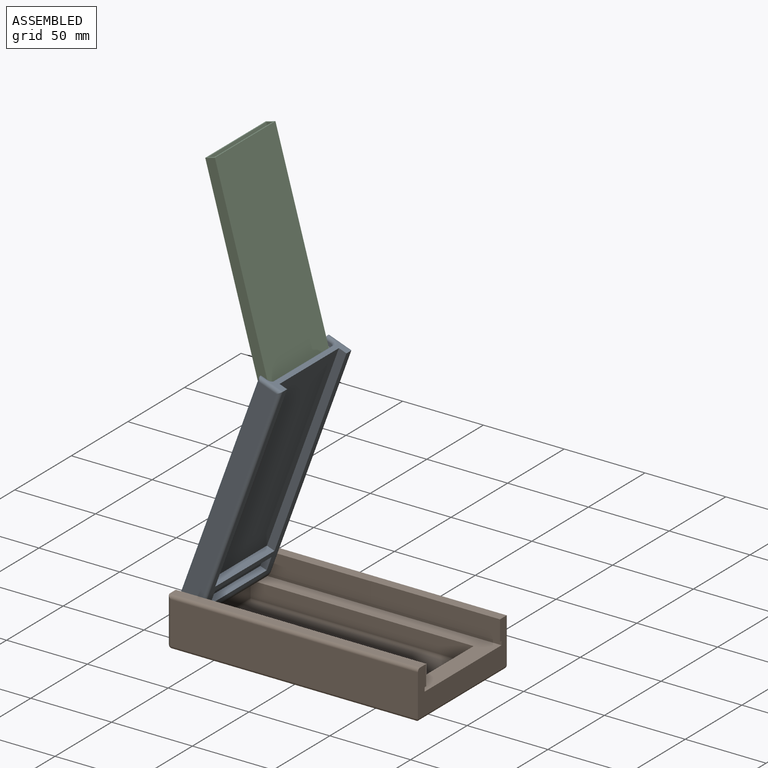
[diagram: assembled view]
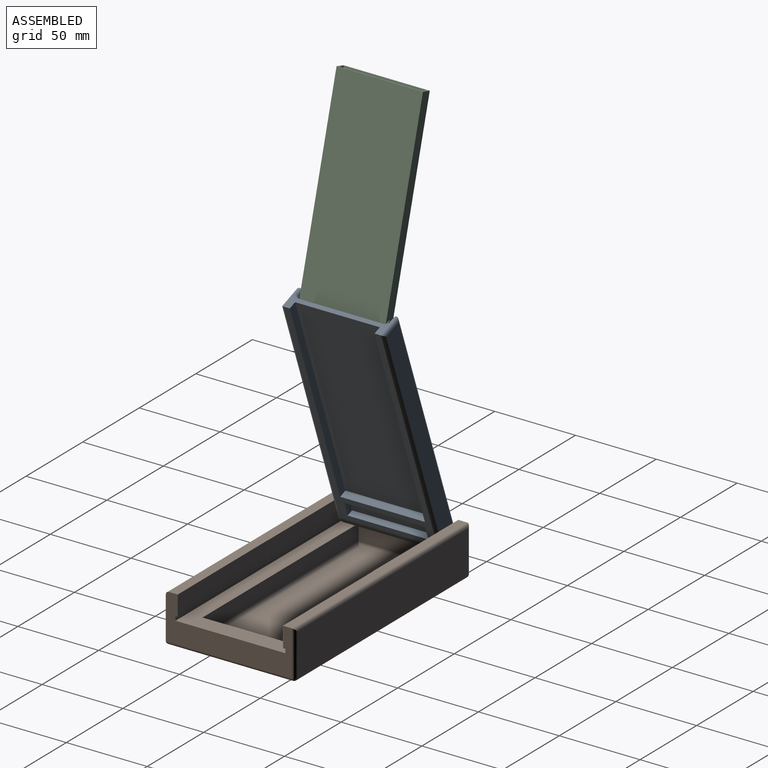
[diagram: assembled view, second angle]
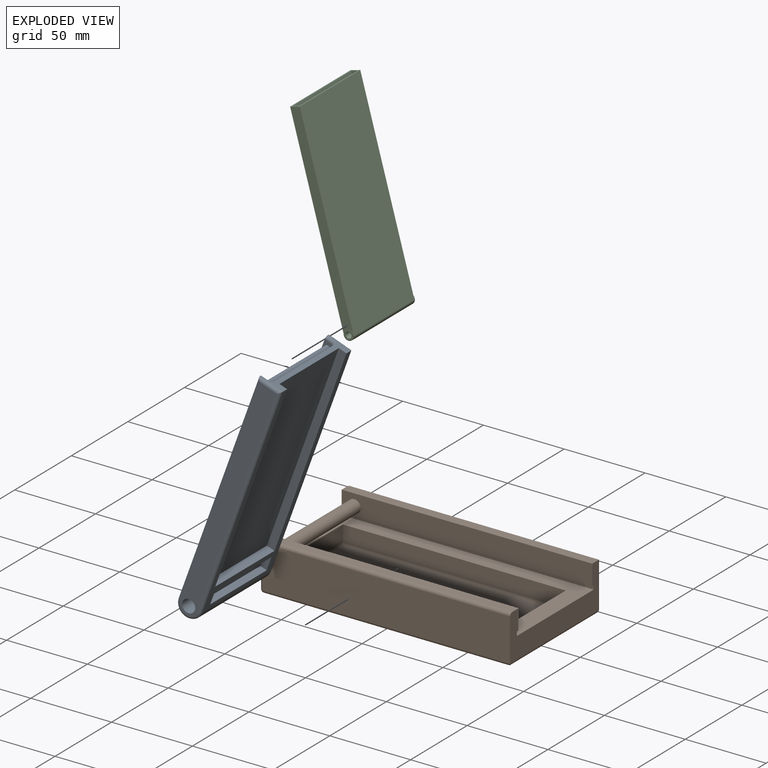
[diagram: exploded view]
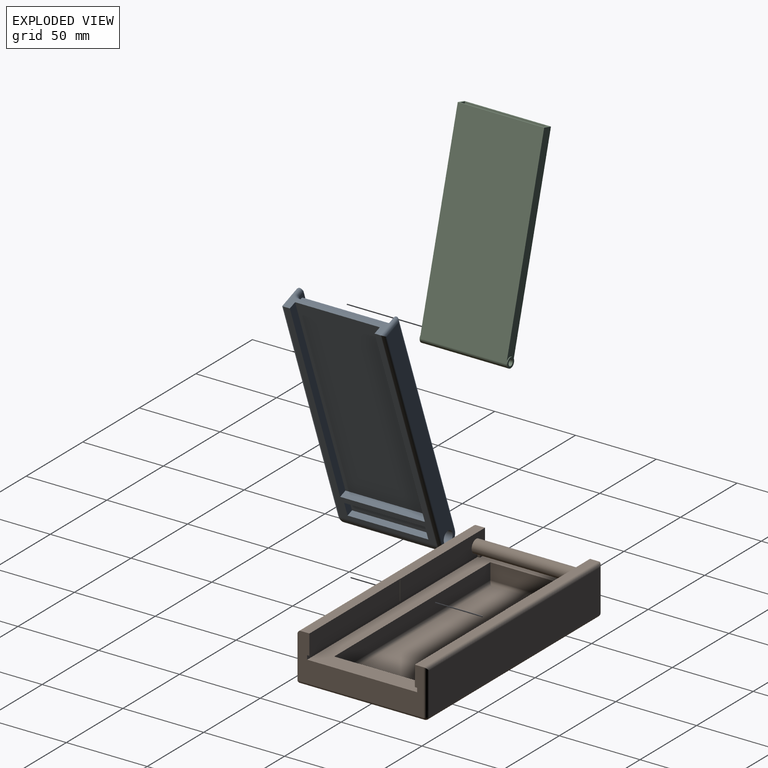
[diagram: exploded view, second angle]
ASSEMBLY  parts=3 mates=2
PART A: 39 faces, bbox 153.8x64x16.2 mm
  f0: plane 130.22x5mm, normal (0,-1,0), area 651.1mm2, adj f2,f4,f13,f33
  f1: plane 130.22x5mm, normal (0,1,0), area 651.1mm2, adj f2,f4,f13,f33
  f2: plane 130.22x52.44mm, normal (0,0,-1), area 6828.6mm2, adj f0,f1,f13,f33
  f3: plane 145.7x60mm, normal (0,0,1), area 1029.1mm2, adj f7,f9,f10,f11,f18,f26,f27,f32
  f4: plane 145.7x60mm, normal (0,0,-1), area 1476.2mm2, adj f0,f1,f7,f13,f28,f30,f33,f34
  f5: plane 149.2x11mm, normal (0,-1,0), area 1578mm2, adj f8,f18,f30,f31,f32
  f6: plane 149.2x11mm, normal (0,1,0), area 1578mm2, adj f8,f26,f27,f28,f29
  f7: cylinder r=7.5mm len=60mm, axis (0,1,0), area 1413.7mm2, adj f3,f4,f29,f31
  f8: cylinder r=4mm len=64mm, axis (0,1,0), area 1608.5mm2, adj f5,f6
  f9: plane 135.7x4mm, normal (0,1,0), area 525.5mm2, adj f3,f11,f14,f15,f18,f19,f20
  f10: plane 135.7x4mm, normal (0,-1,0), area 534.7mm2, adj f3,f11,f14,f24,f26
  f11: plane 56x4mm, normal (1,0,0), area 224mm2, adj f3,f9,f10,f22
  f12: plane 133.7x52.15mm, normal (0,0,1), area 6952.8mm2, adj f17,f19,f20,f22,f23,f24
  f13: plane 60x11mm, normal (1,0,0), area 164.7mm2, adj f0,f1,f2,f4,f18,f21,f23,f25
  f14: cylinder r=1.75mm len=56mm, axis (0,1,0), area 615.8mm2, adj f9,f10,f19,f24
  f15: cylinder r=1.85mm len=3.7mm, axis (0,1,0), area 4mm2, adj f9,f16,f17
  f16: plane 3.7x3.7mm, normal (0,1,0), area 10.8mm2, adj f15
  f17: bspline ~2.98x2mm, area 7.8mm2, adj f12,f15,f19,f20
  f18: cylinder r=2mm len=15mm, axis (0,0,1), area 55.1mm2, adj f3,f5,f9,f13,f21,f30,f32
  f19: cylinder r=2mm len=13.78mm, axis (1,0,0), area 41.8mm2, adj f9,f12,f14,f17,f21
  f20: cylinder r=2mm len=118.95mm, axis (1,0,0), area 371.4mm2, adj f9,f12,f17,f22
  f21: torus R=4mm, axis (1,0,0), area 13.5mm2, adj f13,f18,f19,f23
  f22: cylinder r=2mm len=56mm, axis (0,-1,0), area 171.4mm2, adj f11,f12,f20,f24
  f23: cylinder r=2mm len=52mm, axis (0,-1,0), area 163.4mm2, adj f12,f13,f21,f25
  f24: cylinder r=2mm len=135.7mm, axis (-1,0,0), area 422.5mm2, adj f10,f12,f14,f22,f25
  f25: torus R=4mm, axis (1,0,0), area 13.5mm2, adj f13,f23,f24,f26
  f26: cylinder r=2mm len=15mm, axis (0,0,-1), area 55.1mm2, adj f3,f6,f10,f13,f25,f27,f28
  f27: cylinder r=2mm len=145.7mm, axis (-1,0,0), area 455.5mm2, adj f3,f6,f26,f29
  f28: cylinder r=2mm len=145.7mm, axis (1,0,0), area 455.5mm2, adj f4,f6,f26,f29
  f29: torus R=5.5mm, axis (0,-1,0), area 66.8mm2, adj f6,f7,f27,f28
  f30: cylinder r=2mm len=145.7mm, axis (-1,0,0), area 455.5mm2, adj f4,f5,f18,f31
  f31: torus R=5.5mm, axis (0,-1,0), area 66.8mm2, adj f5,f7,f30,f32
  f32: cylinder r=2mm len=145.7mm, axis (1,0,0), area 455.5mm2, adj f3,f5,f18,f31
  f33: plane 52.44x5mm, normal (1,0,0), area 262.2mm2, adj f0,f1,f2,f4
  f34: plane 50x4.2mm, normal (1,0,0), area 210mm2, adj f4,f35,f37,f38
  f35: plane 8.75x4.2mm, normal (0,-1,0), area 36.7mm2, adj f4,f34,f36,f38
  f36: plane 50x4.2mm, normal (-1,0,0), area 210mm2, adj f4,f35,f37,f38
  f37: plane 8.75x4.2mm, normal (0,1,0), area 36.7mm2, adj f4,f34,f36,f38
  f38: plane 50x8.75mm, normal (0,0,-1), area 437.5mm2, adj f34,f35,f36,f37
PART B: 42 faces, bbox 155x80x30 mm
  f0: plane 12.5x0.12mm, normal (1,0,0), area 1.5mm2, adj f2,f5,f8,f21
  f1: plane 75x15mm, normal (0,-1,0), area 898.4mm2, adj f3,f6,f10,f11,f13,f23,f24
  f2: plane 75x15mm, normal (0,1,0), area 898.4mm2, adj f0,f6,f8,f10,f13,f21,f22
  f3: plane 12.5x0.12mm, normal (1,0,0), area 1.5mm2, adj f1,f4,f11,f24
  f4: plane 80x12.5mm, normal (0,-1,0), area 1000mm2, adj f3,f11,f14,f24
  f5: plane 80x12.5mm, normal (0,1,0), area 1000mm2, adj f0,f8,f14,f21
  f6: plane 155x68mm, normal (0,0,1), area 3626.7mm2, adj f1,f2,f10,f14,f15,f16,f17,f18
  f7: plane 153x26mm, normal (0,-1,0), area 3978mm2, adj f14,f30,f31,f35
  f8: plane 155x5.5mm, normal (0,0,1), area 842.9mm2, adj f0,f2,f5,f10,f14,f30
  f9: plane 151x26mm, normal (0,1,0), area 3926mm2, adj f36,f37,f39,f41
  f10: plane 76x28mm, normal (-1,0,0), area 1153mm2, adj f1,f2,f6,f8,f11,f31,f32,f36
  f11: plane 155x5.5mm, normal (0,0,1), area 842.9mm2, adj f1,f3,f4,f10,f14,f39
  f12: plane 151x76mm, normal (0,0,-1), area 11476mm2, adj f32,f35,f37,f38
  f13: cylinder r=4mm len=65mm, axis (0,1,0), area 1633.6mm2, adj f1,f2
  f14: plane 78x28mm, normal (1,0,0), area 1197.6mm2, adj f4,f5,f6,f7,f8,f11,f20,f21
  f15: plane 138x10mm, normal (0,1,0), area 1380mm2, adj f6,f16,f18,f26
  f16: plane 50x10mm, normal (-1,0,0), area 500mm2, adj f6,f15,f17,f27
  f17: plane 138x10mm, normal (0,-1,0), area 1380mm2, adj f6,f16,f18,f29
  f18: plane 50x10mm, normal (1,0,0), area 500mm2, adj f6,f15,f17,f28
  f19: plane 134x46mm, normal (0,0,1), area 6164mm2, adj f26,f27,f28,f29
  f20: plane 150.55x2.5mm, normal (0,1,0), area 376.4mm2, adj f6,f14,f21,f22
  f21: plane 150.55x1.5mm, normal (0,0,-1), area 216.2mm2, adj f0,f2,f5,f14,f20,f22
  f22: plane 2.5x1.5mm, normal (1,0,0), area 3.8mm2, adj f2,f6,f20,f21
  f23: plane 2.5x1.5mm, normal (1,0,0), area 3.8mm2, adj f1,f6,f24,f25
  f24: plane 150.55x1.5mm, normal (0,0,-1), area 216.2mm2, adj f1,f3,f4,f14,f23,f25
  f25: plane 150.55x2.5mm, normal (0,-1,0), area 376.4mm2, adj f6,f14,f23,f24
  f26: cylinder r=2mm len=138mm, axis (1,0,0), area 429mm2, adj f15,f19,f27,f28
  f27: cylinder r=2mm len=50mm, axis (0,1,0), area 152.5mm2, adj f16,f19,f26,f29
  f28: cylinder r=2mm len=50mm, axis (0,-1,0), area 152.5mm2, adj f18,f19,f26,f29
  f29: cylinder r=2mm len=138mm, axis (-1,0,0), area 429mm2, adj f17,f19,f27,f28
  f30: cylinder r=2mm len=155mm, axis (-1,0,0), area 484.7mm2, adj f7,f8,f14,f31
  f31: cylinder r=2mm len=28mm, axis (0,0,1), area 85.7mm2, adj f7,f10,f30,f33
  f32: cylinder r=2mm len=76mm, axis (0,-1,0), area 238.8mm2, adj f10,f12,f33,f34
  f33: sphere r=2mm, area 6.3mm2, adj f31,f32,f35
  f34: sphere r=2mm, area 6.3mm2, adj f32,f36,f37
  f35: cylinder r=2mm len=153mm, axis (1,0,0), area 478.4mm2, adj f7,f12,f33,f38
  f36: cylinder r=2mm len=28mm, axis (0,0,-1), area 85.7mm2, adj f9,f10,f34,f39
  f37: cylinder r=2mm len=151mm, axis (-1,0,0), area 474.4mm2, adj f9,f12,f34,f40
  f38: cylinder r=2mm len=78mm, axis (0,1,0), area 242.8mm2, adj f12,f14,f35,f40
  f39: cylinder r=2mm len=155mm, axis (1,0,0), area 482.4mm2, adj f9,f11,f36,f41
  f40: sphere r=2mm, area 6.3mm2, adj f37,f38,f41
  f41: cylinder r=2mm len=28mm, axis (0,0,1), area 85.7mm2, adj f9,f14,f39,f40
PART C: 20 faces, bbox 126.7x54.2x6.2 mm
  f0: plane 53.51x6.2mm, normal (-1,0,0), area 115.4mm2, adj f5,f6,f7,f8,f15,f16,f17,f18
  f1: plane 2.1x0.82mm, normal (0,-1,0), area 0.1mm2, adj f8,f10,f13
  f2: plane 2.1x0.82mm, normal (0,-1,0), area 0.1mm2, adj f7,f10,f14
  f3: plane 2.1x0.82mm, normal (0,1,0), area 0.1mm2, adj f8,f10,f13
  f4: plane 2.1x0.82mm, normal (0,1,0), area 0.1mm2, adj f7,f10,f14
  f5: plane 123.56x6.2mm, normal (0,-1,0), area 751mm2, adj f0,f7,f8,f10
  f6: plane 123.56x6.2mm, normal (0,1,0), area 751mm2, adj f0,f7,f8,f10
  f7: plane 124.04x53.51mm, normal (0,0,1), area 6637.2mm2, adj f0,f2,f4,f5,f6,f14
  f8: plane 124.04x53.51mm, normal (0,0,-1), area 6637.2mm2, adj f0,f1,f3,f5,f6,f13
  f9: cylinder r=1.85mm len=54.2mm, axis (0,-1,0), area 630mm2, adj f11,f12
  f10: cylinder r=3.1mm len=54.2mm, axis (0,-1,0), area 287.7mm2, adj f1,f2,f3,f4,f5,f6,f11,f12
  f11: plane 6.2x6.2mm, normal (0,1,0), area 19.4mm2, adj f9,f10
  f12: plane 6.2x6.2mm, normal (0,-1,0), area 19.4mm2, adj f9,f10
  f13: cylinder r=2mm len=53.51mm, axis (0,-1,0), area 100.5mm2, adj f1,f3,f8,f10
  f14: cylinder r=2mm len=53.51mm, axis (0,-1,0), area 100.5mm2, adj f2,f4,f7,f10
  f15: plane 121.63x51.51mm, normal (0,0,1), area 6264.8mm2, adj f0,f16,f17,f19
  f16: plane 121.63x4.2mm, normal (0,1,0), area 508.2mm2, adj f0,f15,f18,f19
  f17: plane 121.63x4.2mm, normal (0,-1,0), area 508.2mm2, adj f0,f15,f18,f19
  f18: plane 121.63x51.51mm, normal (0,0,-1), area 6264.8mm2, adj f0,f16,f17,f19
  f19: cylinder r=2.85mm len=51.51mm, axis (0,-1,0), area 243.2mm2, adj f15,f16,f17,f18
PLACE A rot(axis=(0,-1,0),70deg) t=(-19.2,-30.3,94.55)mm
PLACE B t=(3.51,-30,30.9)mm fixed
PLACE C rot(axis=(0,1,0),74.3deg) t=(-62.74,-31.35,222.81)mm
MATE cylindrical C.f9 <-> A.f14  axis (0,-1,0) through (-20.07,-58.3,171.69)mm
MATE cylindrical B.f13 <-> A.f7  axis (0,1,0) through (-63.69,-30,38.7)mm
